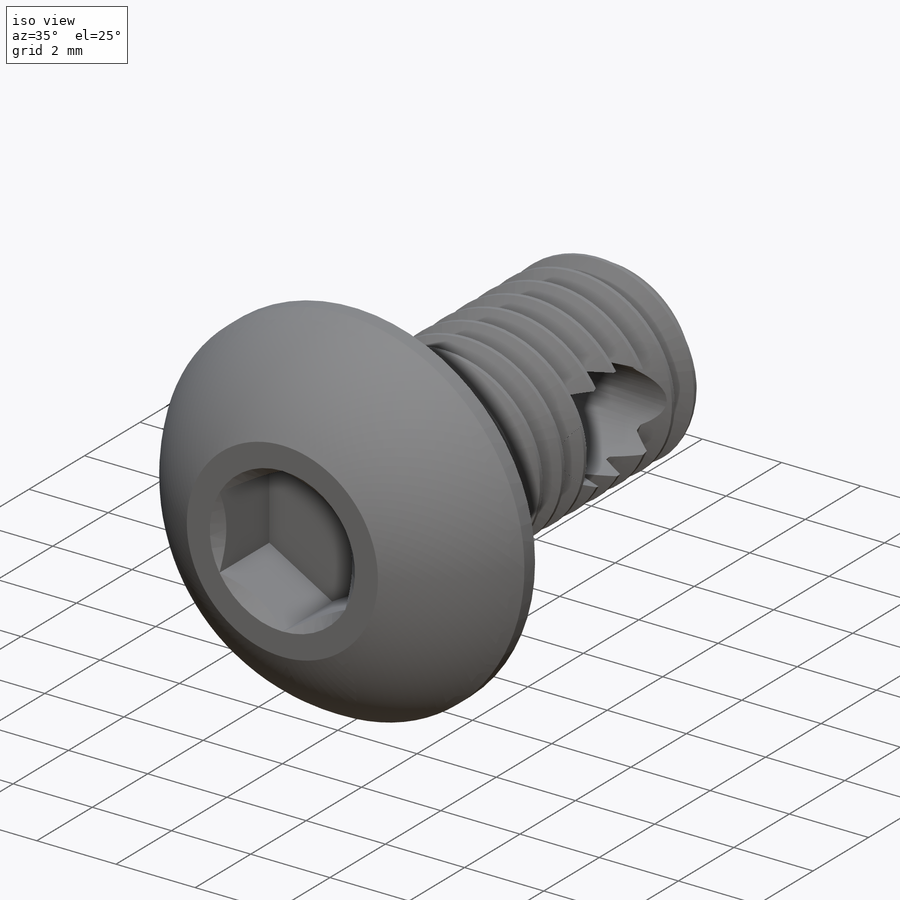
[diagram: iso view]
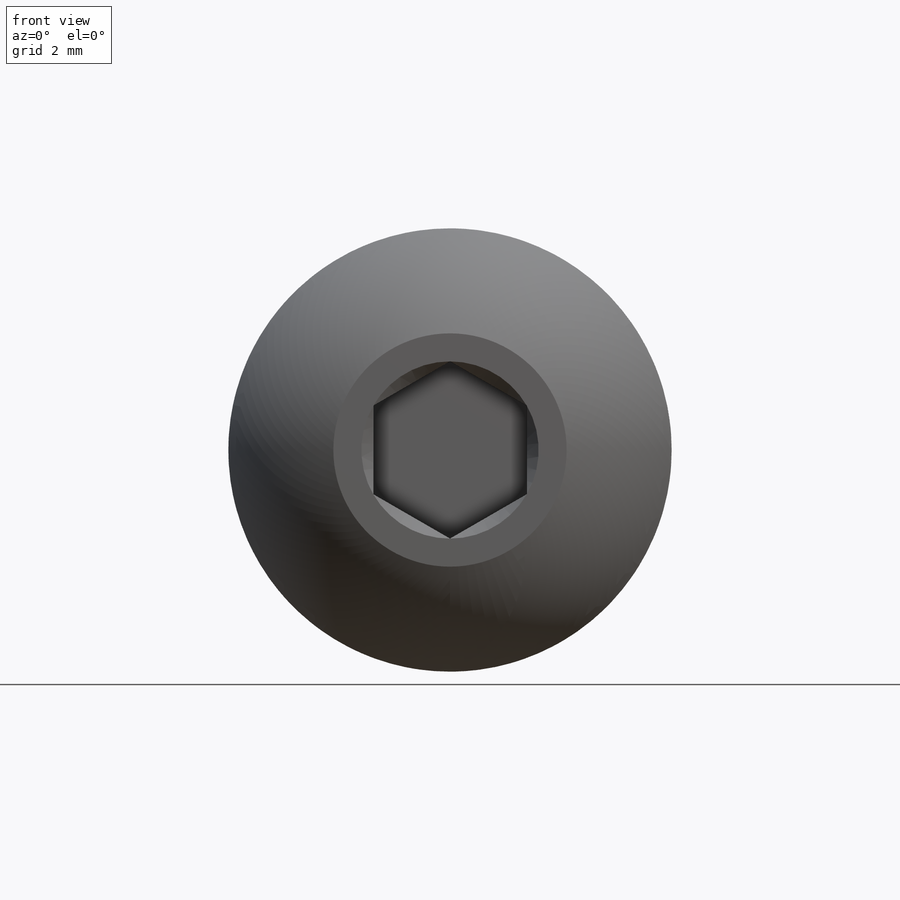
[diagram: front view]
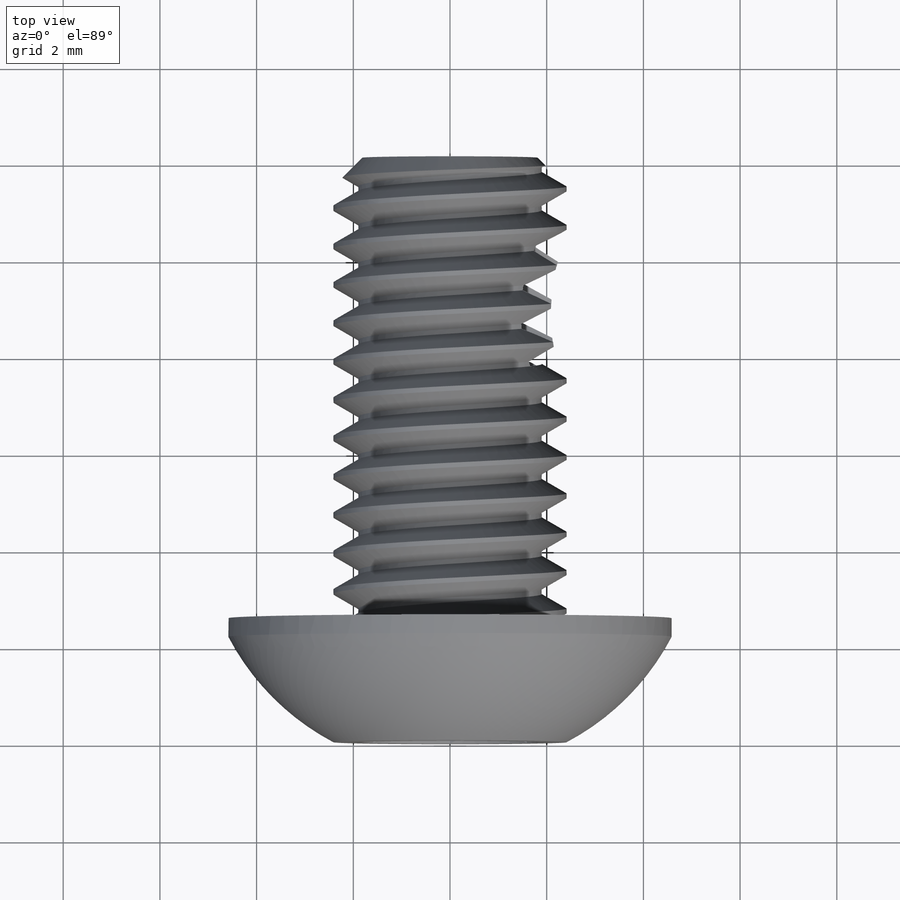
[diagram: top view]
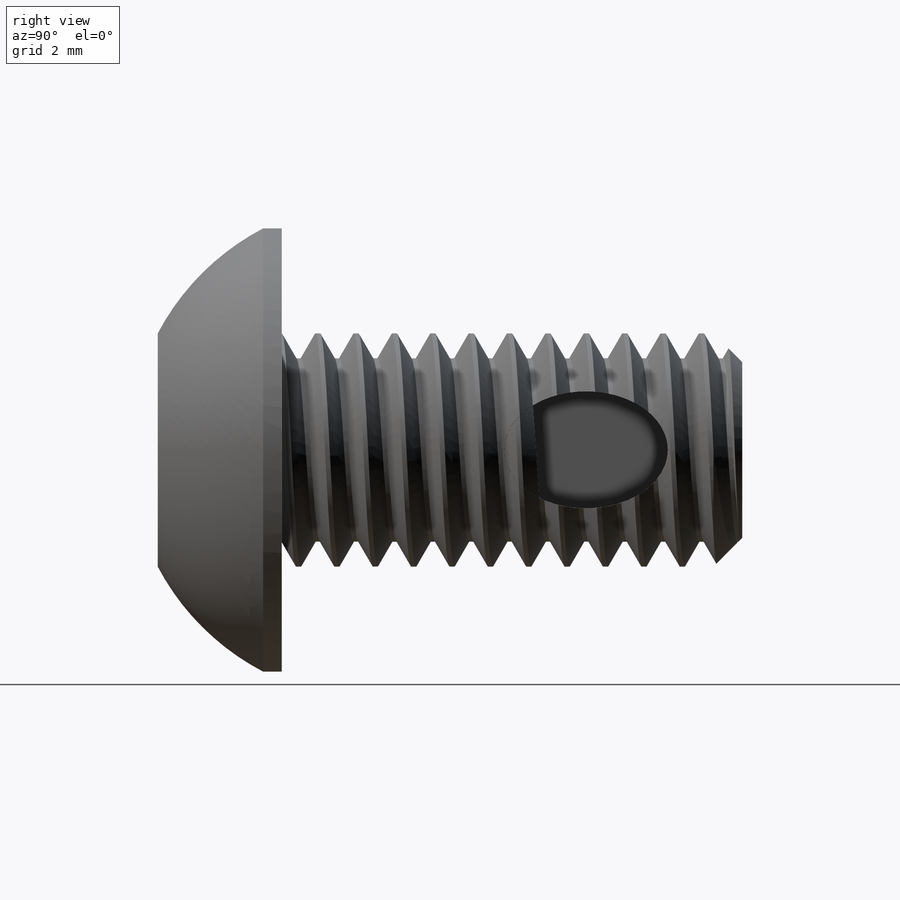
[diagram: right view]
SOLIDWORKS PART (.sldprt)
format: sldprt  version: not decoded by parser v0  size: 1,047,040 bytes
history: native  units: mm
features: sketch x10, cut_extrude x3, revolve x2, material x1, helix x1, chamfer x1, sweep x1, extrude x1, plane x1 (+16 scaffold rows collapsed; 2 parser-record rows omitted)
feature tree (39):
  scaffold x16  (default folders/planes/origin — collapsed)
  material  "Material <not specified>"
  sketch  "Sketch1"  dims[c1.Head Ht=6.35mm c1.Head Dia=30.1752mm c1.Dia=4.826mm c1.Lg=25.4mm c1.D1=~2.593207mm c1.Head Angle=82.0deg c1.D2=~1.814114mm c1.D3=~4.370808mm c2.Head Ht=8.2296mm c2.Lg=76.2mm c2.D1=~0.82296mm c2.D2=~2.34061mm c2.Head Angle=82.0deg c3.D1=~0.38481mm c3.Head Ht=~5.529916mm c4.Head Ht=2.5654mm c4.Head Dia=9.1694mm c4.Lg=9.525mm c4.Hex=3.175mm]
  revolve  "Revolve1"  Angle=360deg
  sketch  "Sketch3"
  helix  "Helix/Spiral1"  Pitch=10.31875mm
  sketch  "Sketch2"  dims[c1.D1=~1.485125mm c2.D1=60.0deg c2.D2=~0.099219mm c2.D3=~0.396875mm]
  chamfer  "Chamfer1"  Distance=0.595313mm Angle=45deg
  sweep  "Cut-Sweep1"
  sketch  "Sketch7"
  revolve  "Revolve2"  Angle=360deg
  sketch  "Sketch5"  dims[Hex=9.525mm]
  cut_extrude  "Cut-Extrude2"  Depth=1.79578mm
  sketch  "Sketch6"
  cut_extrude  "Cut-Extrude3"  Depth=1.79578mm
  parser-record x2  (decoder bookkeeping rows leaked as tree rows — omitted from the tree; the rows remain in map.json)
  sketch  "Sketch9"  dims[D1=0.0mm]
  extrude  "Boss-Extrude2"  Depth=28.575mm Min Thread=28.575mm
  plane  "Plane1"  Offset=2.46126mm
  sketch  "Sketch11"  dims[D1=~3.23342mm D2=2.413mm D3=3.3782mm D5=~0.00254mm D6=2.54mm D7=5.0mm]
  sketch  "Sketch12"  dims[D1=0.0mm]
  cut_extrude  "Cut-Extrude4"  Depth=0.00254mm
  sketch  "Sketch10"  dims[D1=~1.190625mm]
decode coverage: 15 of 19 modeling features carry decoded parameters
note: ~ marks probable driven/reference dimensions
note: suppression state not decoded; provenance and decode notes live in map.json
